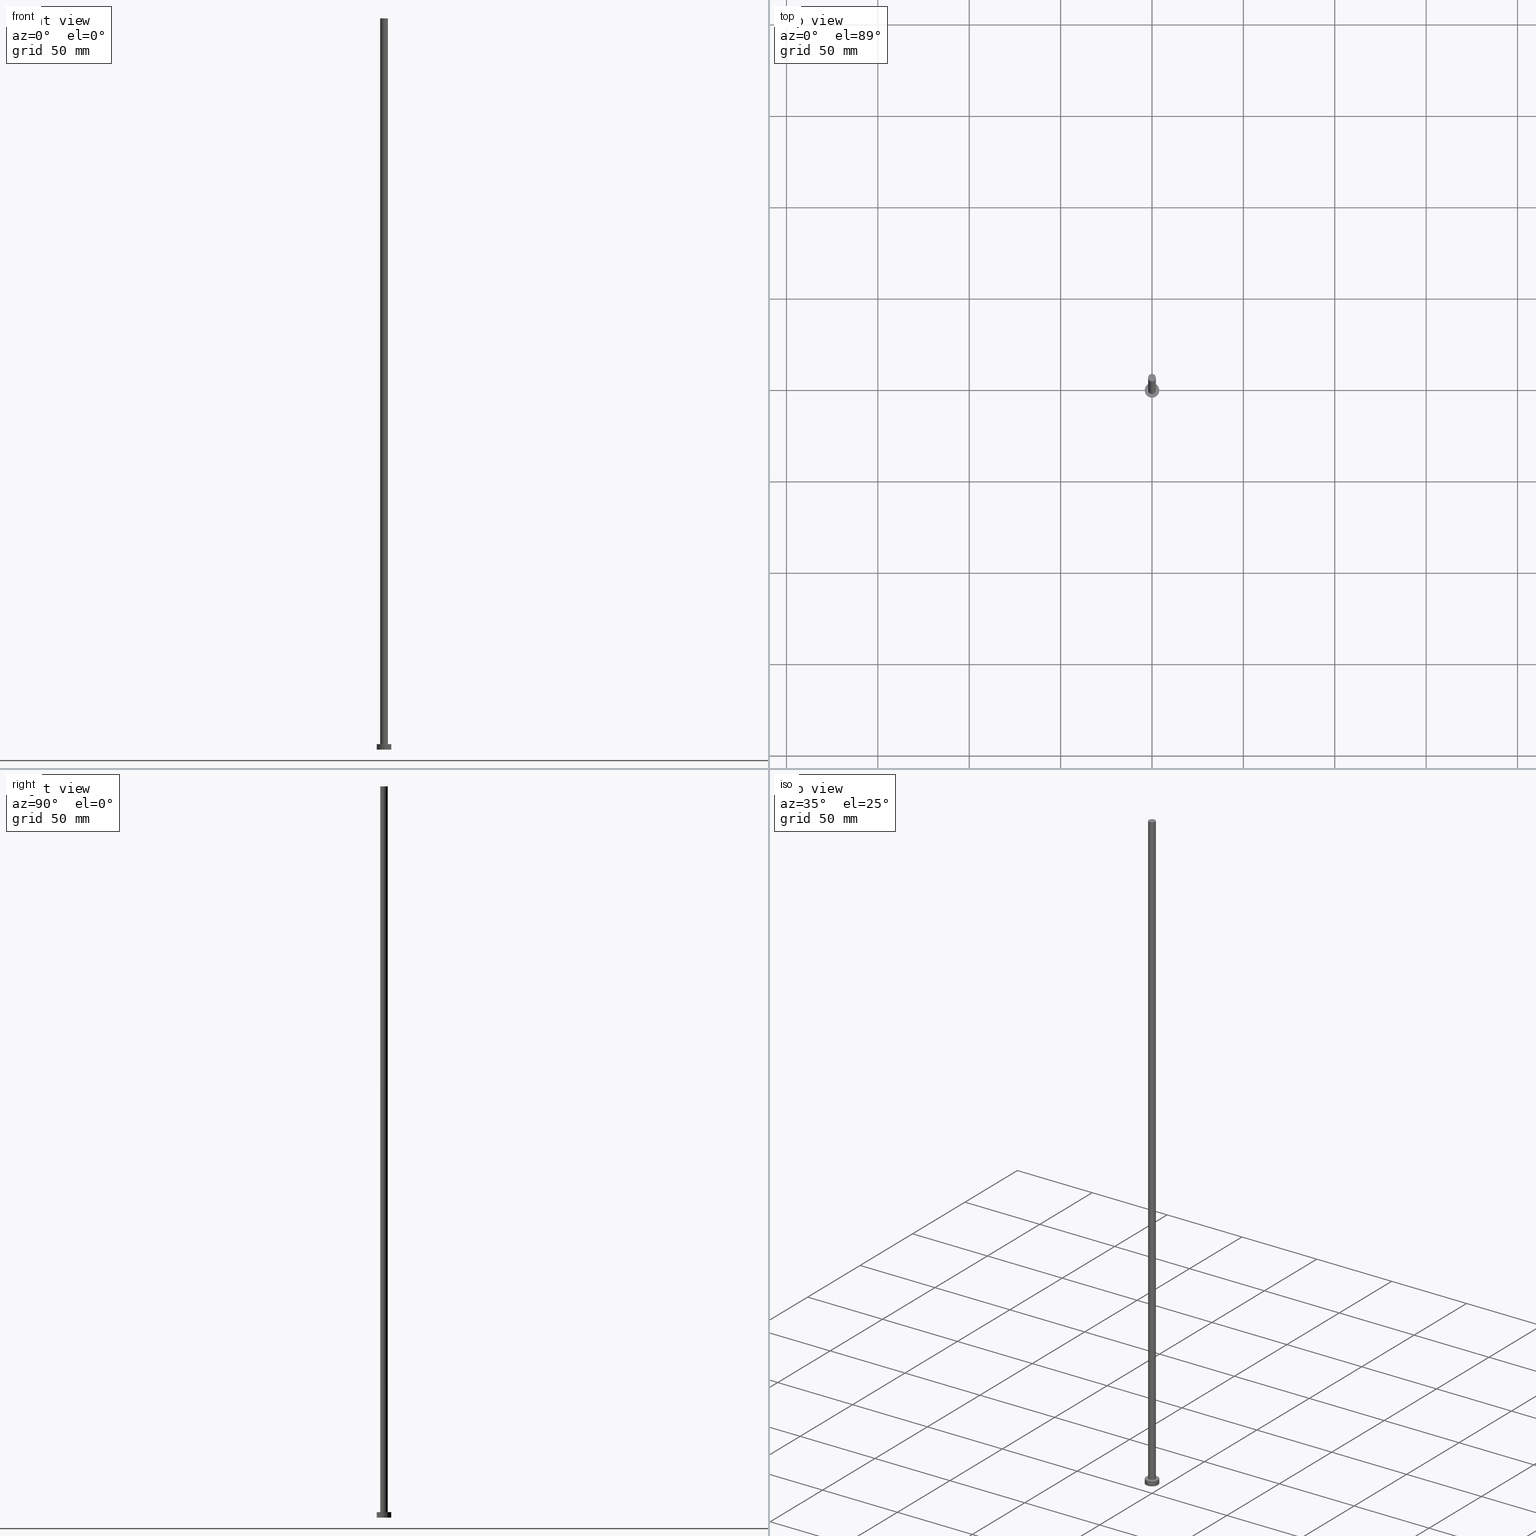
[diagram: canonical four-view strip — front | top / right | iso, engineering-drawing reading convention]
A machine part, canonical four-view strip (front | top / right | iso — engineering-drawing reading convention). The complete STEP part file that produces these views, byte-faithful:
ISO-10303-21;
HEADER;
FILE_DESCRIPTION (( 'STEP AP203' ),
    '1' );
FILE_NAME ('abad.STEP',
    '2023-02-12T12:00:07',
    ( '' ),
    ( '' ),
    'SwSTEP 2.0',
    'SolidWorks 2019',
    '' );
FILE_SCHEMA (( 'CONFIG_CONTROL_DESIGN' ));
ENDSEC;

DATA;
#1 = DIRECTION ( 'NONE',  ( 1.000000000000000000, 0.000000000000000000, 0.000000000000000000 ) ) ;
#2 = CIRCLE ( 'NONE', #200, 4.000000000000000000 ) ;
#3 = CYLINDRICAL_SURFACE ( 'NONE', #50, 4.000000000000000000 ) ;
#4 = ADVANCED_FACE ( 'NONE', ( #240 ), #52, .F. ) ;
#5 = ORIENTED_EDGE ( 'NONE', *, *, #118, .T. ) ;
#6 = FACE_OUTER_BOUND ( 'NONE', #84, .T. ) ;
#7 = CARTESIAN_POINT ( 'NONE',  ( 0.000000000000000000, 0.000000000000000000, 0.000000000000000000 ) ) ;
#8 = AXIS2_PLACEMENT_3D ( 'NONE', #254, #186, #27 ) ;
#9 = CARTESIAN_POINT ( 'NONE',  ( -2.100000000000000089, 0.000000000000000000, 400.0000000000000000 ) ) ;
#10 = ORIENTED_EDGE ( 'NONE', *, *, #139, .T. ) ;
#11 = EDGE_LOOP ( 'NONE', ( #224, #187, #34, #70 ) ) ;
#12 = DESIGN_CONTEXT ( 'detailed design', #237, 'design' ) ;
#13 = ADVANCED_FACE ( 'NONE', ( #176 ), #35, .T. ) ;
#14 = AXIS2_PLACEMENT_3D ( 'NONE', #212, #252, #249 ) ;
#15 = EDGE_LOOP ( 'NONE', ( #189, #90 ) ) ;
#16 = DIRECTION ( 'NONE',  ( -0.000000000000000000, -0.000000000000000000, -1.000000000000000000 ) ) ;
#17 = CARTESIAN_POINT ( 'NONE',  ( 4.000000000000000000, 4.898587196589412829E-16, 3.000000000000000000 ) ) ;
#18 = PERSON_AND_ORGANIZATION ( #98, #211 ) ;
#19 = DATE_AND_TIME ( #199, #206 ) ;
#20 = CALENDAR_DATE ( 2023, 12, 2 ) ;
#21 = PERSON_AND_ORGANIZATION ( #98, #211 ) ;
#22 = CC_DESIGN_PERSON_AND_ORGANIZATION_ASSIGNMENT ( #76, #151, ( #148 ) ) ;
#23 =( NAMED_UNIT ( * ) PLANE_ANGLE_UNIT ( ) SI_UNIT ( $, .RADIAN. ) );
#24 = APPROVAL_DATE_TIME ( #203, #141 ) ;
#25 = PERSON_AND_ORGANIZATION_ROLE ( 'creator' ) ;
#26 = APPROVAL_PERSON_ORGANIZATION ( #229, #44, #63 ) ;
#27 = DIRECTION ( 'NONE',  ( -1.000000000000000000, 0.000000000000000000, 0.000000000000000000 ) ) ;
#28 = LOCAL_TIME ( 13, 0, 7.000000000000000000, #235 ) ;
#29 = ORIENTED_EDGE ( 'NONE', *, *, #33, .T. ) ;
#30 = VERTEX_POINT ( 'NONE', #130 ) ;
#31 = DIRECTION ( 'NONE',  ( -0.000000000000000000, -0.000000000000000000, -1.000000000000000000 ) ) ;
#32 =( GEOMETRIC_REPRESENTATION_CONTEXT ( 3 ) GLOBAL_UNCERTAINTY_ASSIGNED_CONTEXT ( ( #122 ) ) GLOBAL_UNIT_ASSIGNED_CONTEXT ( ( #242, #23, #85 ) ) REPRESENTATION_CONTEXT ( 'NONE', 'WORKASPACE' ) );
#33 = EDGE_CURVE ( 'NONE', #184, #188, #225, .T. ) ;
#34 = ORIENTED_EDGE ( 'NONE', *, *, #238, .T. ) ;
#35 = PLANE ( 'NONE',  #132 ) ;
#36 = AXIS2_PLACEMENT_3D ( 'NONE', #45, #207, #1 ) ;
#37 = CARTESIAN_POINT ( 'NONE',  ( 0.000000000000000000, 0.000000000000000000, 0.000000000000000000 ) ) ;
#38 = CALENDAR_DATE ( 2023, 12, 2 ) ;
#39 = FACE_OUTER_BOUND ( 'NONE', #166, .T. ) ;
#40 = PERSON_AND_ORGANIZATION_ROLE ( 'creator' ) ;
#41 = CARTESIAN_POINT ( 'NONE',  ( 0.000000000000000000, 0.000000000000000000, 400.0000000000000000 ) ) ;
#42 = COORDINATED_UNIVERSAL_TIME_OFFSET ( 1, 0, .AHEAD. ) ;
#43 = FACE_OUTER_BOUND ( 'NONE', #73, .T. ) ;
#44 = APPROVAL ( #154, 'NEUR�EN�' ) ;
#45 = CARTESIAN_POINT ( 'NONE',  ( 0.000000000000000000, 0.000000000000000000, 3.000000000000000000 ) ) ;
#46 = ADVANCED_FACE ( 'NONE', ( #107, #39 ), #201, .T. ) ;
#47 = CARTESIAN_POINT ( 'NONE',  ( -4.000000000000000000, 0.000000000000000000, 3.000000000000000000 ) ) ;
#48 = APPROVAL_PERSON_ORGANIZATION ( #251, #136, #133 ) ;
#49 = CC_DESIGN_PERSON_AND_ORGANIZATION_ASSIGNMENT ( #193, #59, ( #125 ) ) ;
#50 = AXIS2_PLACEMENT_3D ( 'NONE', #120, #181, #101 ) ;
#51 = CYLINDRICAL_SURFACE ( 'NONE', #8, 2.100000000000000089 ) ;
#52 = PLANE ( 'NONE',  #246 ) ;
#53 = SECURITY_CLASSIFICATION ( '', '', #161 ) ;
#54 = APPLICATION_PROTOCOL_DEFINITION ( 'international standard', 'config_control_design', 1994, #237 ) ;
#55 = EDGE_LOOP ( 'NONE', ( #123, #5 ) ) ;
#56 = APPLICATION_CONTEXT ( 'configuration controlled 3d designs of mechanical parts and assemblies' ) ;
#57 = AXIS2_PLACEMENT_3D ( 'NONE', #185, #169, #71 ) ;
#58 = DIRECTION ( 'NONE',  ( 1.000000000000000000, 0.000000000000000000, -0.000000000000000000 ) ) ;
#59 = PERSON_AND_ORGANIZATION_ROLE ( 'design_supplier' ) ;
#60 = AXIS2_PLACEMENT_3D ( 'NONE', #159, #65, #192 ) ;
#61 = EDGE_CURVE ( 'NONE', #168, #89, #205, .T. ) ;
#62 = CARTESIAN_POINT ( 'NONE',  ( -2.100000000000000089, 0.000000000000000000, 3.000000000000000000 ) ) ;
#63 = APPROVAL_ROLE ( '' ) ;
#64 = CIRCLE ( 'NONE', #36, 4.000000000000000000 ) ;
#65 = DIRECTION ( 'NONE',  ( 0.000000000000000000, 0.000000000000000000, 1.000000000000000000 ) ) ;
#66 = CALENDAR_DATE ( 2023, 12, 2 ) ;
#67 = CALENDAR_DATE ( 2023, 12, 2 ) ;
#68 = APPLICATION_PROTOCOL_DEFINITION ( 'international standard', 'config_control_design', 1994, #56 ) ;
#69 = ADVANCED_FACE ( 'NONE', ( #80 ), #152, .T. ) ;
#70 = ORIENTED_EDGE ( 'NONE', *, *, #61, .T. ) ;
#71 = DIRECTION ( 'NONE',  ( 1.000000000000000000, 0.000000000000000000, 0.000000000000000000 ) ) ;
#72 = ORIENTED_EDGE ( 'NONE', *, *, #97, .F. ) ;
#73 = EDGE_LOOP ( 'NONE', ( #99, #74, #147, #143 ) ) ;
#74 = ORIENTED_EDGE ( 'NONE', *, *, #150, .T. ) ;
#75 = DIRECTION ( 'NONE',  ( 1.000000000000000000, 0.000000000000000000, -0.000000000000000000 ) ) ;
#76 = PERSON_AND_ORGANIZATION ( #98, #211 ) ;
#77 = DIRECTION ( 'NONE',  ( 0.000000000000000000, 0.000000000000000000, 1.000000000000000000 ) ) ;
#78 = CC_DESIGN_APPROVAL ( #141, ( #53 ) ) ;
#79 = DIRECTION ( 'NONE',  ( -0.000000000000000000, -0.000000000000000000, -1.000000000000000000 ) ) ;
#80 = FACE_OUTER_BOUND ( 'NONE', #164, .T. ) ;
#81 = DIRECTION ( 'NONE',  ( 0.000000000000000000, 0.000000000000000000, 1.000000000000000000 ) ) ;
#82 = APPROVAL_DATE_TIME ( #113, #136 ) ;
#83 = CLOSED_SHELL ( 'NONE', ( #223, #208, #239, #46, #4, #69, #13 ) ) ;
#84 = EDGE_LOOP ( 'NONE', ( #88, #226, #10, #146 ) ) ;
#85 =( NAMED_UNIT ( * ) SI_UNIT ( $, .STERADIAN. ) SOLID_ANGLE_UNIT ( ) );
#86 = DIRECTION ( 'NONE',  ( 0.000000000000000000, 0.000000000000000000, 1.000000000000000000 ) ) ;
#87 = LOCAL_TIME ( 13, 0, 7.000000000000000000, #255 ) ;
#88 = ORIENTED_EDGE ( 'NONE', *, *, #118, .F. ) ;
#89 = VERTEX_POINT ( 'NONE', #230 ) ;
#90 = ORIENTED_EDGE ( 'NONE', *, *, #106, .F. ) ;
#91 = CARTESIAN_POINT ( 'NONE',  ( -4.000000000000000000, 0.000000000000000000, 3.000000000000000000 ) ) ;
#92 = CARTESIAN_POINT ( 'NONE',  ( -2.100000000000000089, 0.000000000000000000, 400.0000000000000000 ) ) ;
#93 = DIRECTION ( 'NONE',  ( 1.000000000000000000, 0.000000000000000000, 0.000000000000000000 ) ) ;
#94 = PERSON_AND_ORGANIZATION ( #98, #211 ) ;
#95 = CARTESIAN_POINT ( 'NONE',  ( 0.000000000000000000, 0.000000000000000000, 400.0000000000000000 ) ) ;
#96 = CARTESIAN_POINT ( 'NONE',  ( 0.000000000000000000, 0.000000000000000000, 3.000000000000000000 ) ) ;
#97 = EDGE_CURVE ( 'NONE', #243, #188, #195, .T. ) ;
#98 = PERSON ( 'NEUR�EN�', 'NEUR�EN�', 'NEUR�EN�', ('NEUR�EN�'), ('NEUR�EN�'), ('NEUR�EN�') ) ;
#99 = ORIENTED_EDGE ( 'NONE', *, *, #220, .F. ) ;
#100 = ORIENTED_EDGE ( 'NONE', *, *, #33, .F. ) ;
#101 = DIRECTION ( 'NONE',  ( -1.000000000000000000, 0.000000000000000000, 0.000000000000000000 ) ) ;
#102 = ORIENTED_EDGE ( 'NONE', *, *, #175, .T. ) ;
#103 = CC_DESIGN_SECURITY_CLASSIFICATION ( #53, ( #125 ) ) ;
#104 = ORIENTED_EDGE ( 'NONE', *, *, #121, .T. ) ;
#105 = VERTEX_POINT ( 'NONE', #91 ) ;
#106 = EDGE_CURVE ( 'NONE', #89, #168, #140, .T. ) ;
#107 = FACE_BOUND ( 'NONE', #222, .T. ) ;
#108 = DIRECTION ( 'NONE',  ( 0.000000000000000000, 0.000000000000000000, 1.000000000000000000 ) ) ;
#109 = PERSON_AND_ORGANIZATION ( #98, #211 ) ;
#110 = CARTESIAN_POINT ( 'NONE',  ( 0.000000000000000000, 0.000000000000000000, 3.000000000000000000 ) ) ;
#111 = AXIS2_PLACEMENT_3D ( 'NONE', #247, #231, #174 ) ;
#112 = DIRECTION ( 'NONE',  ( -1.000000000000000000, 0.000000000000000000, 0.000000000000000000 ) ) ;
#113 = DATE_AND_TIME ( #20, #87 ) ;
#114 = CYLINDRICAL_SURFACE ( 'NONE', #142, 4.000000000000000000 ) ;
#115 = COORDINATED_UNIVERSAL_TIME_OFFSET ( 1, 0, .AHEAD. ) ;
#116 = COORDINATED_UNIVERSAL_TIME_OFFSET ( 1, 0, .AHEAD. ) ;
#117 = CIRCLE ( 'NONE', #111, 2.100000000000000089 ) ;
#118 = EDGE_CURVE ( 'NONE', #243, #245, #167, .T. ) ;
#119 = CARTESIAN_POINT ( 'NONE',  ( 2.100000000000000089, 2.571758278209441957E-16, 400.0000000000000000 ) ) ;
#120 = CARTESIAN_POINT ( 'NONE',  ( 0.000000000000000000, 0.000000000000000000, 3.000000000000000000 ) ) ;
#121 = EDGE_CURVE ( 'NONE', #245, #184, #129, .T. ) ;
#122 = UNCERTAINTY_MEASURE_WITH_UNIT (LENGTH_MEASURE( 1.000000000000000082E-05 ), #242, 'distance_accuracy_value', 'NONE');
#123 = ORIENTED_EDGE ( 'NONE', *, *, #198, .T. ) ;
#124 = PRODUCT_DEFINITION_SHAPE ( 'NONE', 'NONE',  #126 ) ;
#125 = PRODUCT_DEFINITION_FORMATION_WITH_SPECIFIED_SOURCE ( 'LIBOVOLN�', '', #148, .NOT_KNOWN. ) ;
#126 = PRODUCT_DEFINITION ( 'NEZN�M�', '', #125, #12 ) ;
#127 = VECTOR ( 'NONE', #173, 1000.000000000000000 ) ;
#128 = ORIENTED_EDGE ( 'NONE', *, *, #198, .F. ) ;
#129 = LINE ( 'NONE', #92, #127 ) ;
#130 = CARTESIAN_POINT ( 'NONE',  ( 4.000000000000000000, 4.898587196589412829E-16, 3.000000000000000000 ) ) ;
#131 = DIRECTION ( 'NONE',  ( 1.000000000000000000, 0.000000000000000000, 0.000000000000000000 ) ) ;
#132 = AXIS2_PLACEMENT_3D ( 'NONE', #95, #157, #58 ) ;
#133 = APPROVAL_ROLE ( '' ) ;
#134 = DIRECTION ( 'NONE',  ( 0.000000000000000000, 0.000000000000000000, 1.000000000000000000 ) ) ;
#135 = APPROVAL_STATUS ( 'not_yet_approved' ) ;
#136 = APPROVAL ( #178, 'NEUR�EN�' ) ;
#137 = DATE_AND_TIME ( #67, #244 ) ;
#138 = VECTOR ( 'NONE', #79, 1000.000000000000000 ) ;
#139 = EDGE_CURVE ( 'NONE', #188, #184, #117, .T. ) ;
#140 = CIRCLE ( 'NONE', #194, 4.000000000000000000 ) ;
#141 = APPROVAL ( #135, 'NEUR�EN�' ) ;
#142 = AXIS2_PLACEMENT_3D ( 'NONE', #96, #31, #218 ) ;
#143 = ORIENTED_EDGE ( 'NONE', *, *, #238, .F. ) ;
#144 = MECHANICAL_CONTEXT ( 'NONE', #56, 'mechanical' ) ;
#145 = AXIS2_PLACEMENT_3D ( 'NONE', #41, #134, #214 ) ;
#146 = ORIENTED_EDGE ( 'NONE', *, *, #121, .F. ) ;
#147 = ORIENTED_EDGE ( 'NONE', *, *, #106, .T. ) ;
#148 = PRODUCT ( 'abad', 'abad', '', ( #144 ) ) ;
#149 = CARTESIAN_POINT ( 'NONE',  ( 0.000000000000000000, 0.000000000000000000, 0.000000000000000000 ) ) ;
#150 = EDGE_CURVE ( 'NONE', #30, #89, #250, .T. ) ;
#151 = PERSON_AND_ORGANIZATION_ROLE ( 'design_owner' ) ;
#152 = CYLINDRICAL_SURFACE ( 'NONE', #236, 2.100000000000000089 ) ;
#153 = CC_DESIGN_APPROVAL ( #44, ( #126 ) ) ;
#154 = APPROVAL_STATUS ( 'not_yet_approved' ) ;
#155 = CARTESIAN_POINT ( 'NONE',  ( -4.000000000000000000, 0.000000000000000000, 0.000000000000000000 ) ) ;
#156 = APPROVAL_DATE_TIME ( #196, #44 ) ;
#157 = DIRECTION ( 'NONE',  ( 0.000000000000000000, 0.000000000000000000, 1.000000000000000000 ) ) ;
#158 = DATE_TIME_ROLE ( 'classification_date' ) ;
#159 = CARTESIAN_POINT ( 'NONE',  ( 0.000000000000000000, 0.000000000000000000, 400.0000000000000000 ) ) ;
#160 = APPROVAL_ROLE ( '' ) ;
#161 = SECURITY_CLASSIFICATION_LEVEL ( 'unclassified' ) ;
#162 = DIRECTION ( 'NONE',  ( -0.000000000000000000, -0.000000000000000000, -1.000000000000000000 ) ) ;
#163 = PRODUCT_RELATED_PRODUCT_CATEGORY ( 'detail', '', ( #148 ) ) ;
#164 = EDGE_LOOP ( 'NONE', ( #72, #128, #104, #29 ) ) ;
#165 = DIRECTION ( 'NONE',  ( 1.000000000000000000, 0.000000000000000000, -0.000000000000000000 ) ) ;
#166 = EDGE_LOOP ( 'NONE', ( #102, #241 ) ) ;
#167 = CIRCLE ( 'NONE', #60, 2.100000000000000089 ) ;
#168 = VERTEX_POINT ( 'NONE', #155 ) ;
#169 = DIRECTION ( 'NONE',  ( 0.000000000000000000, 0.000000000000000000, 1.000000000000000000 ) ) ;
#170 = MANIFOLD_SOLID_BREP ( 'P�idat vysunut�m3', #83 ) ;
#171 = DIRECTION ( 'NONE',  ( 1.000000000000000000, 0.000000000000000000, 0.000000000000000000 ) ) ;
#172 = AXIS2_PLACEMENT_3D ( 'NONE', #110, #77, #75 ) ;
#173 = DIRECTION ( 'NONE',  ( -0.000000000000000000, -0.000000000000000000, -1.000000000000000000 ) ) ;
#174 = DIRECTION ( 'NONE',  ( 1.000000000000000000, 0.000000000000000000, 0.000000000000000000 ) ) ;
#175 = EDGE_CURVE ( 'NONE', #105, #30, #2, .T. ) ;
#176 = FACE_OUTER_BOUND ( 'NONE', #55, .T. ) ;
#177 = VECTOR ( 'NONE', #234, 1000.000000000000000 ) ;
#178 = APPROVAL_STATUS ( 'not_yet_approved' ) ;
#179 = CIRCLE ( 'NONE', #145, 2.100000000000000089 ) ;
#180 = ADVANCED_BREP_SHAPE_REPRESENTATION ( 'abad', ( #170, #57 ), #32 ) ;
#181 = DIRECTION ( 'NONE',  ( -0.000000000000000000, -0.000000000000000000, -1.000000000000000000 ) ) ;
#182 = CC_DESIGN_APPROVAL ( #136, ( #125 ) ) ;
#183 = CC_DESIGN_DATE_AND_TIME_ASSIGNMENT ( #137, #217, ( #126 ) ) ;
#184 = VERTEX_POINT ( 'NONE', #62 ) ;
#185 = CARTESIAN_POINT ( 'NONE',  ( 0.000000000000000000, 0.000000000000000000, 0.000000000000000000 ) ) ;
#186 = DIRECTION ( 'NONE',  ( -0.000000000000000000, -0.000000000000000000, -1.000000000000000000 ) ) ;
#187 = ORIENTED_EDGE ( 'NONE', *, *, #175, .F. ) ;
#188 = VERTEX_POINT ( 'NONE', #213 ) ;
#189 = ORIENTED_EDGE ( 'NONE', *, *, #61, .F. ) ;
#190 = PERSON_AND_ORGANIZATION_ROLE ( 'classification_officer' ) ;
#191 = CARTESIAN_POINT ( 'NONE',  ( 0.000000000000000000, 0.000000000000000000, 400.0000000000000000 ) ) ;
#192 = DIRECTION ( 'NONE',  ( 1.000000000000000000, 0.000000000000000000, 0.000000000000000000 ) ) ;
#193 = PERSON_AND_ORGANIZATION ( #98, #211 ) ;
#194 = AXIS2_PLACEMENT_3D ( 'NONE', #37, #108, #171 ) ;
#195 = LINE ( 'NONE', #197, #177 ) ;
#196 = DATE_AND_TIME ( #38, #219 ) ;
#197 = CARTESIAN_POINT ( 'NONE',  ( 2.100000000000000089, 2.571758278209441957E-16, 400.0000000000000000 ) ) ;
#198 = EDGE_CURVE ( 'NONE', #245, #243, #179, .T. ) ;
#199 = CALENDAR_DATE ( 2023, 12, 2 ) ;
#200 = AXIS2_PLACEMENT_3D ( 'NONE', #232, #233, #131 ) ;
#201 = PLANE ( 'NONE',  #172 ) ;
#202 = FACE_OUTER_BOUND ( 'NONE', #11, .T. ) ;
#203 = DATE_AND_TIME ( #66, #28 ) ;
#204 = SHAPE_DEFINITION_REPRESENTATION ( #124, #180 ) ;
#205 = CIRCLE ( 'NONE', #221, 4.000000000000000000 ) ;
#206 = LOCAL_TIME ( 13, 0, 7.000000000000000000, #116 ) ;
#207 = DIRECTION ( 'NONE',  ( 0.000000000000000000, 0.000000000000000000, 1.000000000000000000 ) ) ;
#208 = ADVANCED_FACE ( 'NONE', ( #43 ), #114, .T. ) ;
#209 = APPROVAL_PERSON_ORGANIZATION ( #21, #141, #160 ) ;
#210 = CC_DESIGN_DATE_AND_TIME_ASSIGNMENT ( #19, #158, ( #53 ) ) ;
#211 = ORGANIZATION ( 'NEUR�EN�', 'NEUR�EN�', '' ) ;
#212 = CARTESIAN_POINT ( 'NONE',  ( 0.000000000000000000, 0.000000000000000000, 3.000000000000000000 ) ) ;
#213 = CARTESIAN_POINT ( 'NONE',  ( 2.100000000000000089, 2.571758278209441957E-16, 3.000000000000000000 ) ) ;
#214 = DIRECTION ( 'NONE',  ( 1.000000000000000000, 0.000000000000000000, 0.000000000000000000 ) ) ;
#215 = VECTOR ( 'NONE', #162, 1000.000000000000000 ) ;
#216 = LINE ( 'NONE', #47, #215 ) ;
#217 = DATE_TIME_ROLE ( 'creation_date' ) ;
#218 = DIRECTION ( 'NONE',  ( -1.000000000000000000, 0.000000000000000000, 0.000000000000000000 ) ) ;
#219 = LOCAL_TIME ( 13, 0, 7.000000000000000000, #115 ) ;
#220 = EDGE_CURVE ( 'NONE', #30, #105, #64, .T. ) ;
#221 = AXIS2_PLACEMENT_3D ( 'NONE', #149, #81, #93 ) ;
#222 = EDGE_LOOP ( 'NONE', ( #100, #228 ) ) ;
#223 = ADVANCED_FACE ( 'NONE', ( #6 ), #51, .T. ) ;
#224 = ORIENTED_EDGE ( 'NONE', *, *, #150, .F. ) ;
#225 = CIRCLE ( 'NONE', #14, 2.100000000000000089 ) ;
#226 = ORIENTED_EDGE ( 'NONE', *, *, #97, .T. ) ;
#227 = CC_DESIGN_PERSON_AND_ORGANIZATION_ASSIGNMENT ( #109, #25, ( #126 ) ) ;
#228 = ORIENTED_EDGE ( 'NONE', *, *, #139, .F. ) ;
#229 = PERSON_AND_ORGANIZATION ( #98, #211 ) ;
#230 = CARTESIAN_POINT ( 'NONE',  ( 4.000000000000000000, 4.898587196589412829E-16, 0.000000000000000000 ) ) ;
#231 = DIRECTION ( 'NONE',  ( 0.000000000000000000, 0.000000000000000000, 1.000000000000000000 ) ) ;
#232 = CARTESIAN_POINT ( 'NONE',  ( 0.000000000000000000, 0.000000000000000000, 3.000000000000000000 ) ) ;
#233 = DIRECTION ( 'NONE',  ( 0.000000000000000000, 0.000000000000000000, 1.000000000000000000 ) ) ;
#234 = DIRECTION ( 'NONE',  ( -0.000000000000000000, -0.000000000000000000, -1.000000000000000000 ) ) ;
#235 = COORDINATED_UNIVERSAL_TIME_OFFSET ( 1, 0, .AHEAD. ) ;
#236 = AXIS2_PLACEMENT_3D ( 'NONE', #191, #16, #112 ) ;
#237 = APPLICATION_CONTEXT ( 'configuration controlled 3d designs of mechanical parts and assemblies' ) ;
#238 = EDGE_CURVE ( 'NONE', #105, #168, #216, .T. ) ;
#239 = ADVANCED_FACE ( 'NONE', ( #202 ), #3, .T. ) ;
#240 = FACE_OUTER_BOUND ( 'NONE', #15, .T. ) ;
#241 = ORIENTED_EDGE ( 'NONE', *, *, #220, .T. ) ;
#242 =( LENGTH_UNIT ( ) NAMED_UNIT ( * ) SI_UNIT ( .MILLI., .METRE. ) );
#243 = VERTEX_POINT ( 'NONE', #119 ) ;
#244 = LOCAL_TIME ( 13, 0, 7.000000000000000000, #42 ) ;
#245 = VERTEX_POINT ( 'NONE', #9 ) ;
#246 = AXIS2_PLACEMENT_3D ( 'NONE', #7, #86, #165 ) ;
#247 = CARTESIAN_POINT ( 'NONE',  ( 0.000000000000000000, 0.000000000000000000, 3.000000000000000000 ) ) ;
#248 = CC_DESIGN_PERSON_AND_ORGANIZATION_ASSIGNMENT ( #94, #40, ( #125 ) ) ;
#249 = DIRECTION ( 'NONE',  ( 1.000000000000000000, 0.000000000000000000, 0.000000000000000000 ) ) ;
#250 = LINE ( 'NONE', #17, #138 ) ;
#251 = PERSON_AND_ORGANIZATION ( #98, #211 ) ;
#252 = DIRECTION ( 'NONE',  ( 0.000000000000000000, 0.000000000000000000, 1.000000000000000000 ) ) ;
#253 = CC_DESIGN_PERSON_AND_ORGANIZATION_ASSIGNMENT ( #18, #190, ( #53 ) ) ;
#254 = CARTESIAN_POINT ( 'NONE',  ( 0.000000000000000000, 0.000000000000000000, 400.0000000000000000 ) ) ;
#255 = COORDINATED_UNIVERSAL_TIME_OFFSET ( 1, 0, .AHEAD. ) ;
ENDSEC;
END-ISO-10303-21;
